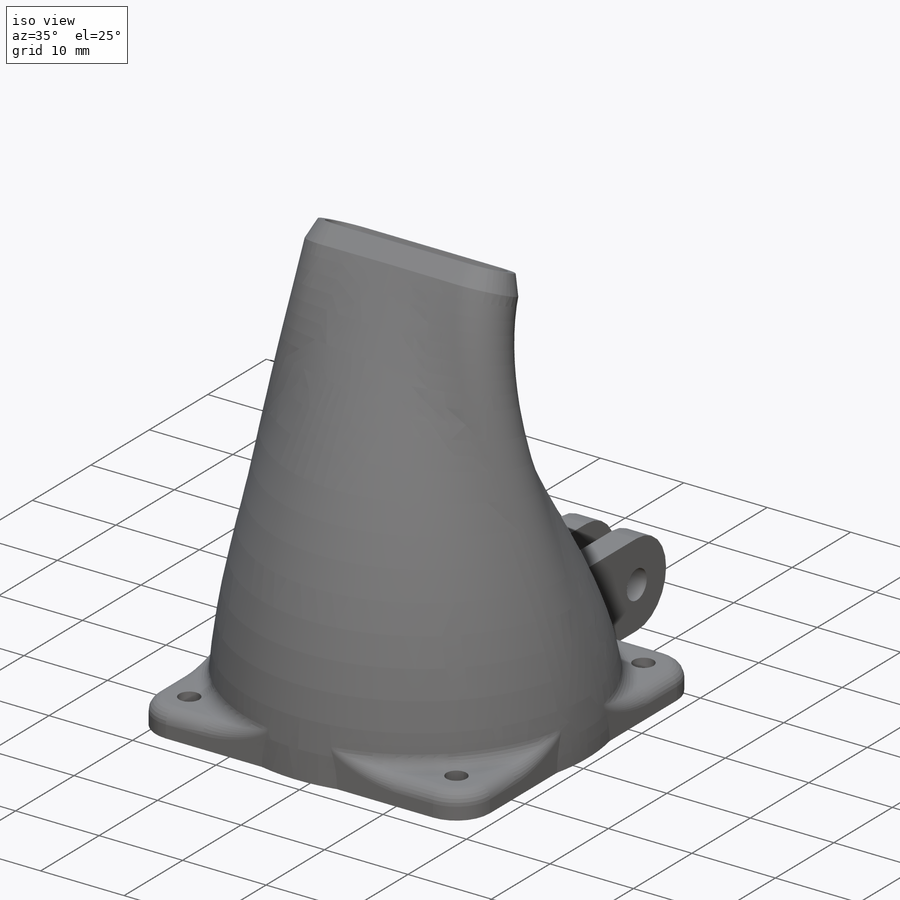
[diagram: iso view]
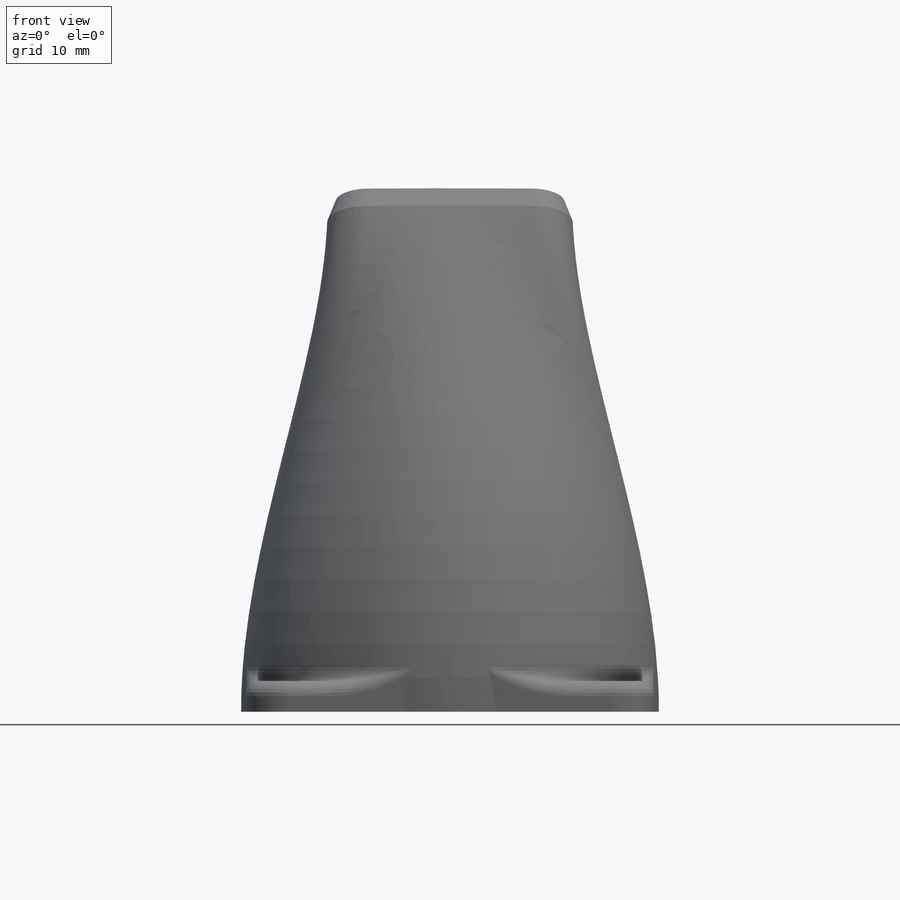
[diagram: front view]
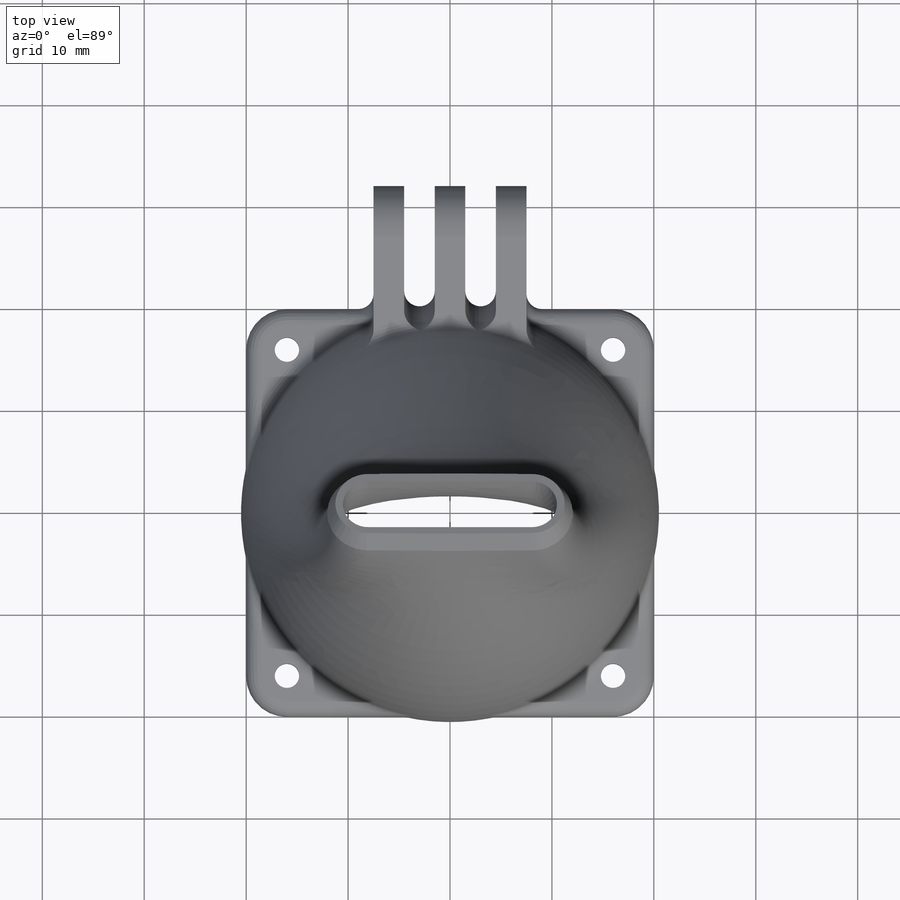
[diagram: top view]
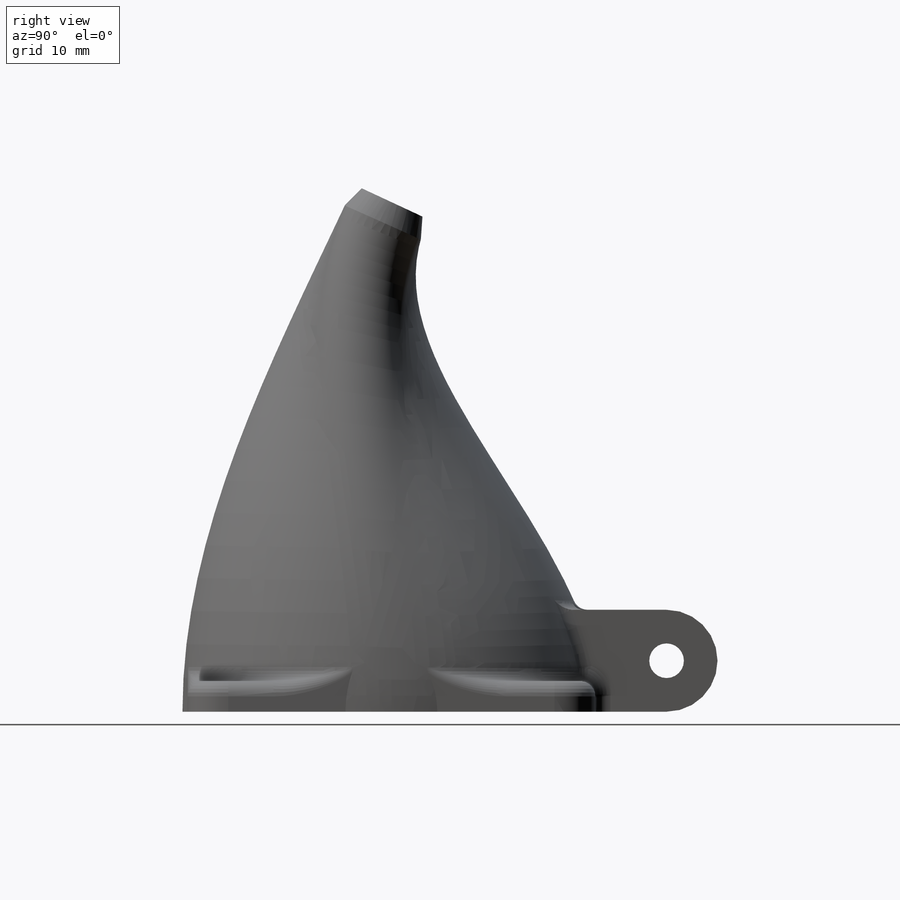
[diagram: right view]
SOLIDWORKS PART (.sldprt)
format: sldprt  version: not decoded by parser v0  size: 780,288 bytes
history: native  units: mm
features: sketch x4, extrude x2, plane x2, fillet x2, material x1, cut_extrude x1, chamfer x1 (+12 scaffold rows collapsed)
feature tree (25):
  scaffold x12  (default folders/planes/origin — collapsed)
  material  "Material <not specified>"
  sketch  "Sketch1"  dims[c1.D3=2.4mm c1.D5=38.0mm c1.D6=4.0mm c1.D1=~82.470218mm c1.D2=~99.631651mm c2.D1=40.0mm c2.D2=40.0mm c2.D4=32.0mm]
  extrude  "Boss-Extrude1"  Depth=3mm
  plane  "Plane1"  Offset=50mm
  plane  "Plane2"
  sketch  "Sketch3"  dims[c1.D1=5.0mm c1.D2=16.0mm c2.D1=1.5mm]
  sketch  "Sketch4"  dims[c1.D1=~9.844611mm c1.D2=~2.70354mm c2.D1=~10.258746mm c2.D2=~2.553832mm c3.D1=3.0mm c3.D2=10.0mm c3.D3=~15.211789mm c3.D4=~3.297927mm c4.D3=~13.235656mm c4.D4=~3.692171mm c5.D3=3.0mm c5.D4=3.0mm c5.D5=10.0mm c5.D6=10.0mm c5.D7=3.0mm c5.D8=3.0mm]
  extrude  "Boss-Extrude2"  Depth=12mm
  sketch  "Sketch5"  dims[D1=3.4mm D2=10.0mm]
  cut_extrude  "Cut-Extrude1"  [1 undecoded]
  chamfer  "Chamfer1"  Distance=0.8mm Angle=70deg
  fillet  "Fillet3"  Radius=1.5mm
  fillet  "Fillet4"  Radius=1.5mm ModelUUID=0mm UUID=0mm
decode coverage: 9 of 10 modeling features carry decoded parameters
note: ~ marks probable driven/reference dimensions
note: 1 parameter value undecoded
note: suppression state not decoded; provenance and decode notes live in map.json
